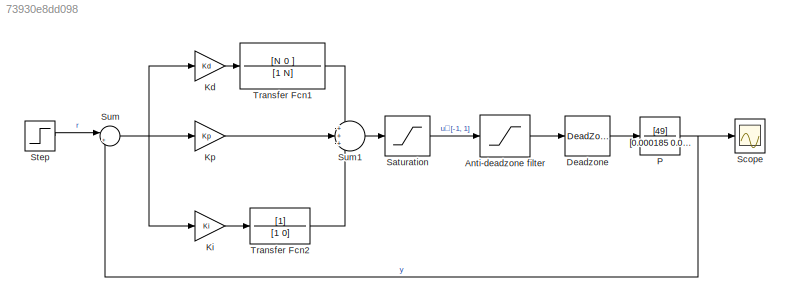
MODEL slx_73930e8dd098
KIND model
CONFIG AbsTol = auto
CONFIG EnableMultiTasking = off
CONFIG FixedStep = auto
CONFIG MaxStep = auto
CONFIG MinStep = auto
CONFIG RelTol = 1e-3
CONFIG SampleTimeConstraint = Unconstrained
CONFIG Solver = VariableStepAuto
CONFIG SolverName = VariableStepAuto
CONFIG StartTime = 0.0
CONFIG StopTime = 10.0
WORKSPACE source: MAT-file member
WORKSPACE N = 10
BLOCK [Saturate] Anti-deadzone filter
  InputPortMap = u0
  Ports = [1, 1]
BLOCK [DeadZone] Deadzone
  LowerValue = -50
  UpperValue = 50
BLOCK [Gain] Kd 
  Gain = Kd
  OutDataTypeStr = Inherit: Inherit via internal rule
  ParamDataTypeStr = Inherit: Inherit via internal rule
  SaturateOnIntegerOverflow = off
BLOCK [Gain] Ki
  Gain = Ki
  OutDataTypeStr = Inherit: Inherit via internal rule
  ParamDataTypeStr = Inherit: Inherit via internal rule
  SaturateOnIntegerOverflow = off
BLOCK [Gain] Kp
  Gain = Kp
  OutDataTypeStr = Inherit: Inherit via internal rule
  ParamDataTypeStr = Inherit: Inherit via internal rule
  SaturateOnIntegerOverflow = off
BLOCK [TransferFcn] P
  ContinuousStateAttributes = 'P'
  Denominator = [0.000185 0.042 1 0]
  Numerator = [49]
BLOCK [Saturate] Saturation
  InputPortMap = u0
  LowerLimit = -1
  Ports = [1, 1]
  UpperLimit = 1
BLOCK [Scope] Scope
  Floating = off
  NumInputPorts = 1
  Ports = [1]
  ScopeSpecificationString = Simulink.scopes.TimeScopeBlockCfg('CurrentConfiguration', extmgr.ConfigurationSet(extmgr.Configuration('Core','General UI',true),extmgr.Configuration('Core','Source UI',true),extmgr.Configuration('Sources','WiredSimulink',true),extmgr.Configuration('Visuals','Time Domain',true,'SerializedDisplays',{struct('MinYLimReal','-125.00000','MaxYLimReal','1125.00000','YLabelReal','','MinYLimMag',' 0.00000'...<+1475ch>
BLOCK [Step] Step
  After = 1000
  SampleTime = 0
BLOCK [Sum] Sum
  IconShape = round
  InputSameDT = off
  Inputs = |+-
  OutDataTypeStr = Inherit: Inherit via internal rule
  Ports = [2, 1]
  SaturateOnIntegerOverflow = off
BLOCK [Sum] Sum1
  IconShape = round
  InputSameDT = off
  Inputs = +++
  OutDataTypeStr = Inherit: Inherit via internal rule
  Ports = [3, 1]
  SaturateOnIntegerOverflow = off
BLOCK [TransferFcn] Transfer Fcn1
  Denominator = [1 N]
  Numerator = [N 0 ]
BLOCK [TransferFcn] Transfer Fcn2
  Denominator = [1 0]
LINE Anti-deadzone filter:1 -> Deadzone:1
LINE Deadzone:1 -> P:1
LINE Kd :1 -> Transfer Fcn1:1
LINE Ki:1 -> Transfer Fcn2:1
LINE Kp:1 -> Sum1:2
NET P:1 -> Scope:1, Sum:2
LINE Saturation:1 -> Anti-deadzone filter:1
LINE Step:1 -> Sum:1
LINE Sum1:1 -> Saturation:1
NET Sum:1 -> Kd :1, Ki:1, Kp:1
LINE Transfer Fcn1:1 -> Sum1:1
LINE Transfer Fcn2:1 -> Sum1:3
note: NET lines group one-source signal fan-out (src -> all destinations, sorted); 1:1 wires keep LINE
